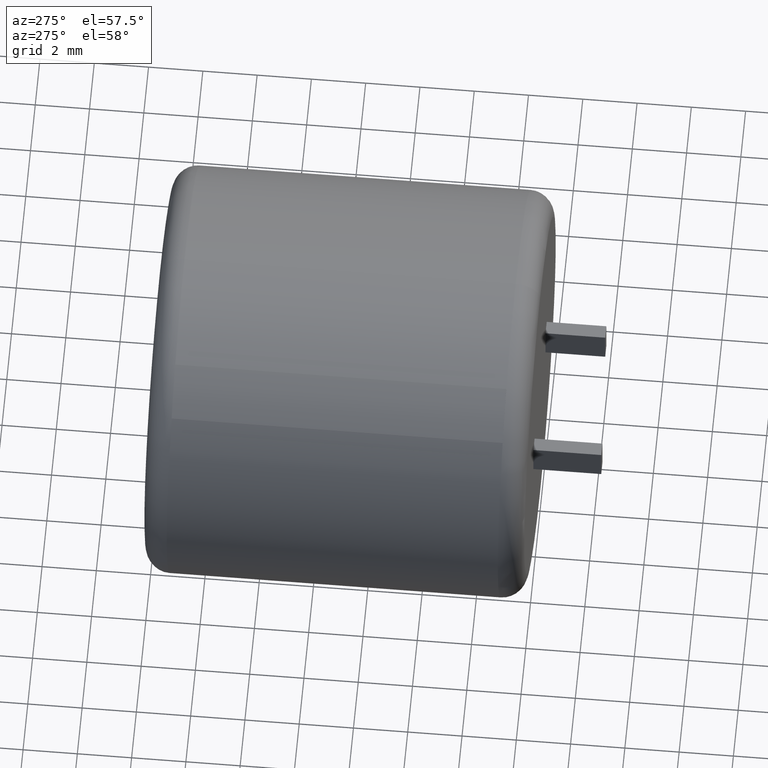
[diagram: clean part render]
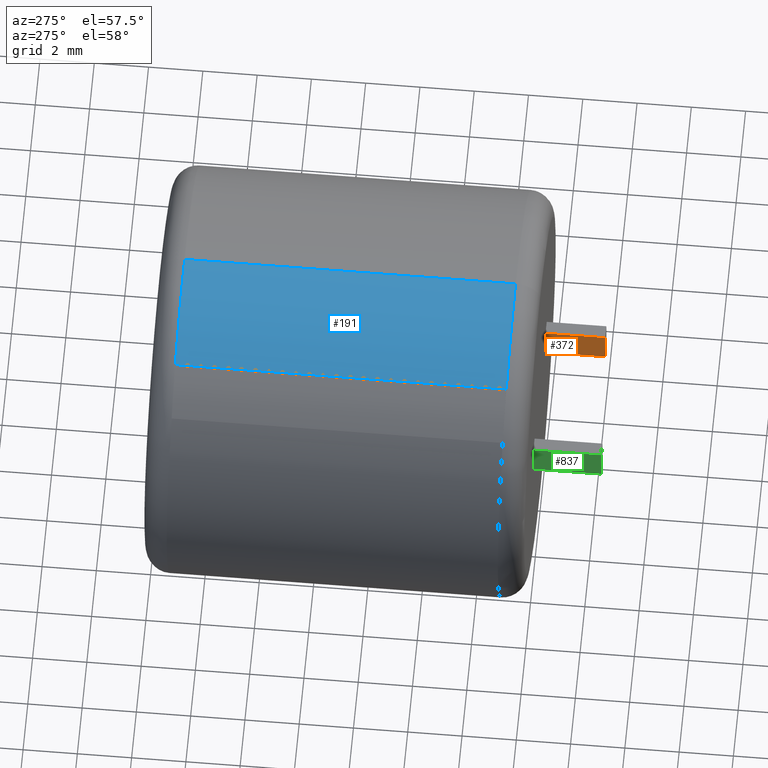
[diagram: same view with three faces highlighted in distinct colors, each labeled with its STEP entity id]
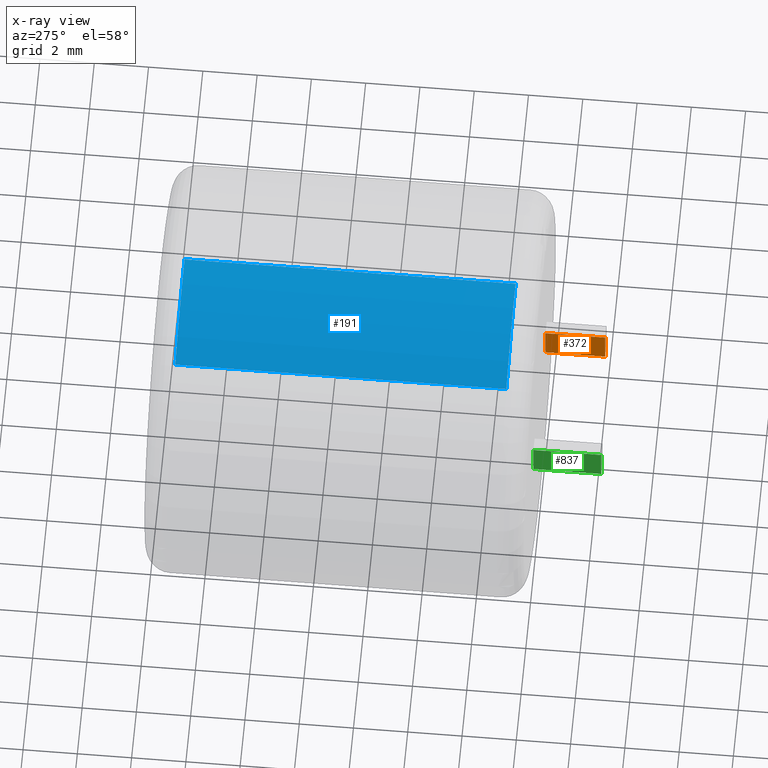
[diagram: x-ray of the same camera — body ghosted, the three highlighted faces saturated]
A machine part, auxiliary view with three faces highlighted in distinct colors.
The next image is the same camera in x-ray (body ghosted, the three faces saturated) — at least one of them is partly hidden behind the body in this view.
Their STEP definitions:

[orange] entity #372 — the highlighted planar face has unit normal (1, 0, 0).
#92 = FACE_OUTER_BOUND ( 'NONE', #2312, .T. ) ;
#128 = EDGE_CURVE ( 'NONE', #1744, #398, #2703, .T. ) ;
#273 = EDGE_CURVE ( 'NONE', #2069, #407, #400, .T. ) ;
#305 = CARTESIAN_POINT ( 'NONE',  ( 2.299999999999999800, -2.200000000000000200, -0.6499999999999998000 ) ) ;
#372 = ADVANCED_FACE ( 'NONE', ( #92 ), #2210, .F. ) ;
#398 = VERTEX_POINT ( 'NONE', #1086 ) ;
#400 = LINE ( 'NONE', #1489, #902 ) ;
#407 = VERTEX_POINT ( 'NONE', #305 ) ;
#456 = ORIENTED_EDGE ( 'NONE', *, *, #273, .F. ) ;
#460 = CARTESIAN_POINT ( 'NONE',  ( 2.299999999999999400, 0.0000000000000000000, 0.6499999999999961400 ) ) ;
#609 = VECTOR ( 'NONE', #1464, 1000.000000000000000 ) ;
#611 = ORIENTED_EDGE ( 'NONE', *, *, #2081, .F. ) ;
#826 = VECTOR ( 'NONE', #2113, 1000.000000000000000 ) ;
#902 = VECTOR ( 'NONE', #1386, 1000.000000000000000 ) ;
#935 = CARTESIAN_POINT ( 'NONE',  ( 2.299999999999999800, -2.200000000000000200, -0.6499999999999998000 ) ) ;
#944 = DIRECTION ( 'NONE',  ( 3.336006684570793000E-016, 0.0000000000000000000, -1.000000000000000000 ) ) ;
#949 = ORIENTED_EDGE ( 'NONE', *, *, #2010, .T. ) ;
#996 = CARTESIAN_POINT ( 'NONE',  ( 2.299999999999999400, -2.200000000000000200, 0.6499999999999961400 ) ) ;
#1059 = LINE ( 'NONE', #996, #1960 ) ;
#1086 = CARTESIAN_POINT ( 'NONE',  ( 2.299999999999999800, 0.0000000000000000000, -0.6499999999999998000 ) ) ;
#1188 = LINE ( 'NONE', #2532, #826 ) ;
#1386 = DIRECTION ( 'NONE',  ( 3.336006684570793000E-016, -0.0000000000000000000, -1.000000000000000000 ) ) ;
#1392 = ORIENTED_EDGE ( 'NONE', *, *, #128, .T. ) ;
#1442 = DIRECTION ( 'NONE',  ( -0.0000000000000000000, 1.000000000000000000, -0.0000000000000000000 ) ) ;
#1463 = AXIS2_PLACEMENT_3D ( 'NONE', #935, #2615, #944 ) ;
#1464 = DIRECTION ( 'NONE',  ( 3.336006684570793000E-016, -0.0000000000000000000, -1.000000000000000000 ) ) ;
#1471 = CARTESIAN_POINT ( 'NONE',  ( 2.299999999999999400, -2.200000000000000200, 0.6499999999999961400 ) ) ;
#1489 = CARTESIAN_POINT ( 'NONE',  ( 2.299999999999999800, -2.200000000000000200, -0.6499999999999998000 ) ) ;
#1653 = CARTESIAN_POINT ( 'NONE',  ( 2.299999999999999800, 0.0000000000000000000, -0.6499999999999998000 ) ) ;
#1744 = VERTEX_POINT ( 'NONE', #460 ) ;
#1960 = VECTOR ( 'NONE', #1442, 1000.000000000000000 ) ;
#2010 = EDGE_CURVE ( 'NONE', #2069, #1744, #1059, .T. ) ;
#2069 = VERTEX_POINT ( 'NONE', #1471 ) ;
#2081 = EDGE_CURVE ( 'NONE', #407, #398, #1188, .T. ) ;
#2113 = DIRECTION ( 'NONE',  ( -0.0000000000000000000, 1.000000000000000000, -0.0000000000000000000 ) ) ;
#2210 = PLANE ( 'NONE',  #1463 ) ;
#2312 = EDGE_LOOP ( 'NONE', ( #1392, #611, #456, #949 ) ) ;
#2532 = CARTESIAN_POINT ( 'NONE',  ( 2.299999999999999800, -2.200000000000000200, -0.6499999999999998000 ) ) ;
#2615 = DIRECTION ( 'NONE',  ( 1.000000000000000000, 0.0000000000000000000, 3.336006684570793000E-016 ) ) ;
#2703 = LINE ( 'NONE', #1653, #609 ) ;

[blue] entity #191 — the highlighted cylindrical surface (partial cylindrical patch) has radius 7.5 mm, axis along (-0, -1, -0).
#17 = CARTESIAN_POINT ( 'NONE',  ( 9.184850993605147900E-016, 0.9029999999999992500, 7.500000000000000000 ) ) ;
#33 = ORIENTED_EDGE ( 'NONE', *, *, #2381, .T. ) ;
#65 = CIRCLE ( 'NONE', #1184, 7.500000000000000000 ) ;
#151 = CARTESIAN_POINT ( 'NONE',  ( 0.0000000000000000000, 0.9029999999999992500, 0.0000000000000000000 ) ) ;
#169 = ORIENTED_EDGE ( 'NONE', *, *, #1360, .F. ) ;
#170 = DIRECTION ( 'NONE',  ( 0.0000000000000000000, 1.000000000000000000, 0.0000000000000000000 ) ) ;
#191 = ADVANCED_FACE ( 'NONE', ( #1552 ), #2464, .T. ) ;
#241 = VERTEX_POINT ( 'NONE', #1065 ) ;
#288 = VECTOR ( 'NONE', #170, 1000.000000000000000 ) ;
#391 = DIRECTION ( 'NONE',  ( 0.0000000000000000000, 0.0000000000000000000, -1.000000000000000000 ) ) ;
#627 = CARTESIAN_POINT ( 'NONE',  ( 0.0000000000000000000, 13.09700000000000100, 0.0000000000000000000 ) ) ;
#713 = VERTEX_POINT ( 'NONE', #2398 ) ;
#1000 = DIRECTION ( 'NONE',  ( -0.0000000000000000000, -1.000000000000000000, -0.0000000000000000000 ) ) ;
#1048 = DIRECTION ( 'NONE',  ( -0.0000000000000000000, -1.000000000000000000, -0.0000000000000000000 ) ) ;
#1065 = CARTESIAN_POINT ( 'NONE',  ( -3.896256266725530300, 13.09700000000000100, 6.408524565295981500 ) ) ;
#1075 = AXIS2_PLACEMENT_3D ( 'NONE', #2316, #1916, #391 ) ;
#1080 = VERTEX_POINT ( 'NONE', #17 ) ;
#1152 = VERTEX_POINT ( 'NONE', #2138 ) ;
#1184 = AXIS2_PLACEMENT_3D ( 'NONE', #627, #1048, #1917 ) ;
#1243 = CARTESIAN_POINT ( 'NONE',  ( -3.896256266725529400, 0.9029999999999992500, 6.408524565295979700 ) ) ;
#1304 = LINE ( 'NONE', #1243, #288 ) ;
#1360 = EDGE_CURVE ( 'NONE', #713, #241, #1304, .T. ) ;
#1530 = EDGE_CURVE ( 'NONE', #1152, #1080, #1736, .T. ) ;
#1552 = FACE_OUTER_BOUND ( 'NONE', #2269, .T. ) ;
#1633 = VECTOR ( 'NONE', #1000, 1000.000000000000000 ) ;
#1639 = ORIENTED_EDGE ( 'NONE', *, *, #1530, .F. ) ;
#1658 = DIRECTION ( 'NONE',  ( 0.0000000000000000000, 1.000000000000000000, 0.0000000000000000000 ) ) ;
#1736 = LINE ( 'NONE', #2277, #1633 ) ;
#1916 = DIRECTION ( 'NONE',  ( -0.0000000000000000000, -1.000000000000000000, -0.0000000000000000000 ) ) ;
#1917 = DIRECTION ( 'NONE',  ( 0.0000000000000000000, 0.0000000000000000000, 1.000000000000000000 ) ) ;
#1973 = ORIENTED_EDGE ( 'NONE', *, *, #2023, .T. ) ;
#2023 = EDGE_CURVE ( 'NONE', #713, #1080, #2520, .T. ) ;
#2138 = CARTESIAN_POINT ( 'NONE',  ( 9.184850993605147900E-016, 13.09700000000000100, 7.500000000000000000 ) ) ;
#2269 = EDGE_LOOP ( 'NONE', ( #1639, #33, #169, #1973 ) ) ;
#2273 = DIRECTION ( 'NONE',  ( 0.0000000000000000000, 0.0000000000000000000, 1.000000000000000000 ) ) ;
#2277 = CARTESIAN_POINT ( 'NONE',  ( 9.184850993605147900E-016, 14.00000000000000000, 7.500000000000000000 ) ) ;
#2316 = CARTESIAN_POINT ( 'NONE',  ( 0.0000000000000000000, 14.00000000000000000, 0.0000000000000000000 ) ) ;
#2381 = EDGE_CURVE ( 'NONE', #1152, #241, #65, .T. ) ;
#2398 = CARTESIAN_POINT ( 'NONE',  ( -3.896256266725528500, 0.9029999999999992500, 6.408524565295980600 ) ) ;
#2464 = CYLINDRICAL_SURFACE ( 'NONE', #1075, 7.500000000000000000 ) ;
#2520 = CIRCLE ( 'NONE', #2714, 7.500000000000000000 ) ;
#2714 = AXIS2_PLACEMENT_3D ( 'NONE', #151, #1658, #2273 ) ;

[green] entity #837 — the highlighted planar face has unit normal (-1, 0, 0).
#5 = FACE_OUTER_BOUND ( 'NONE', #509, .T. ) ;
#285 = CARTESIAN_POINT ( 'NONE',  ( -2.799999999999998900, -2.500000000000000000, 0.6500000000000021300 ) ) ;
#293 = ORIENTED_EDGE ( 'NONE', *, *, #853, .T. ) ;
#320 = CARTESIAN_POINT ( 'NONE',  ( -2.799999999999998900, -2.500000000000000000, -3.416764569621113600E-016 ) ) ;
#367 = VECTOR ( 'NONE', #2452, 1000.000000000000000 ) ;
#376 = CARTESIAN_POINT ( 'NONE',  ( -2.799999999999998900, -2.500000000000000000, -0.6500000000000002400 ) ) ;
#509 = EDGE_LOOP ( 'NONE', ( #1061, #850, #293, #1106 ) ) ;
#569 = DIRECTION ( 'NONE',  ( 0.0000000000000000000, 0.0000000000000000000, 1.000000000000000000 ) ) ;
#775 = EDGE_CURVE ( 'NONE', #2274, #1202, #1939, .T. ) ;
#834 = CARTESIAN_POINT ( 'NONE',  ( -2.799999999999998900, -0.0000000000000000000, -3.416764569621113600E-016 ) ) ;
#837 = ADVANCED_FACE ( 'NONE', ( #5 ), #2471, .T. ) ;
#850 = ORIENTED_EDGE ( 'NONE', *, *, #775, .F. ) ;
#853 = EDGE_CURVE ( 'NONE', #2274, #1892, #1099, .T. ) ;
#891 = CARTESIAN_POINT ( 'NONE',  ( -2.799999999999998900, 0.0000000000000000000, 0.6500000000000021300 ) ) ;
#994 = DIRECTION ( 'NONE',  ( 0.0000000000000000000, 0.0000000000000000000, 1.000000000000000000 ) ) ;
#1061 = ORIENTED_EDGE ( 'NONE', *, *, #2370, .F. ) ;
#1099 = LINE ( 'NONE', #2675, #1674 ) ;
#1106 = ORIENTED_EDGE ( 'NONE', *, *, #2115, .T. ) ;
#1202 = VERTEX_POINT ( 'NONE', #2176 ) ;
#1437 = VECTOR ( 'NONE', #1753, 1000.000000000000000 ) ;
#1475 = DIRECTION ( 'NONE',  ( 0.0000000000000000000, 0.0000000000000000000, 1.000000000000000000 ) ) ;
#1596 = LINE ( 'NONE', #2084, #1437 ) ;
#1607 = VECTOR ( 'NONE', #1475, 1000.000000000000000 ) ;
#1674 = VECTOR ( 'NONE', #569, 1000.000000000000000 ) ;
#1752 = VERTEX_POINT ( 'NONE', #891 ) ;
#1753 = DIRECTION ( 'NONE',  ( -0.0000000000000000000, 1.000000000000000000, -0.0000000000000000000 ) ) ;
#1825 = DIRECTION ( 'NONE',  ( -1.000000000000000000, 0.0000000000000000000, 0.0000000000000000000 ) ) ;
#1856 = CARTESIAN_POINT ( 'NONE',  ( -2.799999999999998900, -2.500000000000000000, -0.6500000000000002400 ) ) ;
#1892 = VERTEX_POINT ( 'NONE', #285 ) ;
#1939 = LINE ( 'NONE', #1856, #367 ) ;
#1981 = AXIS2_PLACEMENT_3D ( 'NONE', #320, #1825, #994 ) ;
#2084 = CARTESIAN_POINT ( 'NONE',  ( -2.799999999999998900, -2.500000000000000000, 0.6500000000000021300 ) ) ;
#2115 = EDGE_CURVE ( 'NONE', #1892, #1752, #1596, .T. ) ;
#2160 = LINE ( 'NONE', #834, #1607 ) ;
#2176 = CARTESIAN_POINT ( 'NONE',  ( -2.799999999999998900, -0.0000000000000000000, -0.6500000000000002400 ) ) ;
#2274 = VERTEX_POINT ( 'NONE', #376 ) ;
#2370 = EDGE_CURVE ( 'NONE', #1202, #1752, #2160, .T. ) ;
#2452 = DIRECTION ( 'NONE',  ( -0.0000000000000000000, 1.000000000000000000, -0.0000000000000000000 ) ) ;
#2471 = PLANE ( 'NONE',  #1981 ) ;
#2675 = CARTESIAN_POINT ( 'NONE',  ( -2.799999999999998900, -2.500000000000000000, -0.6500000000000002400 ) ) ;